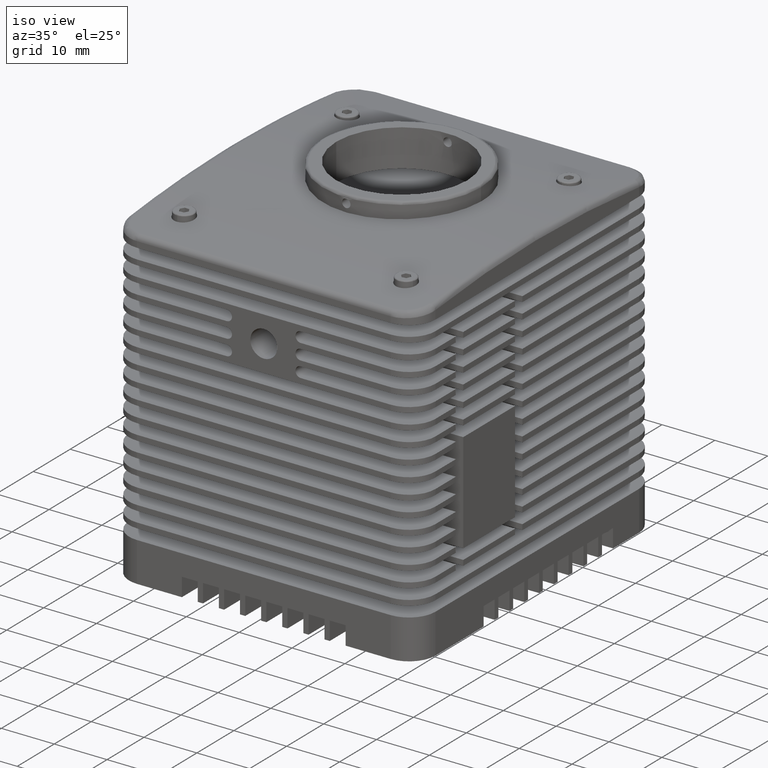
[diagram: clean part render]
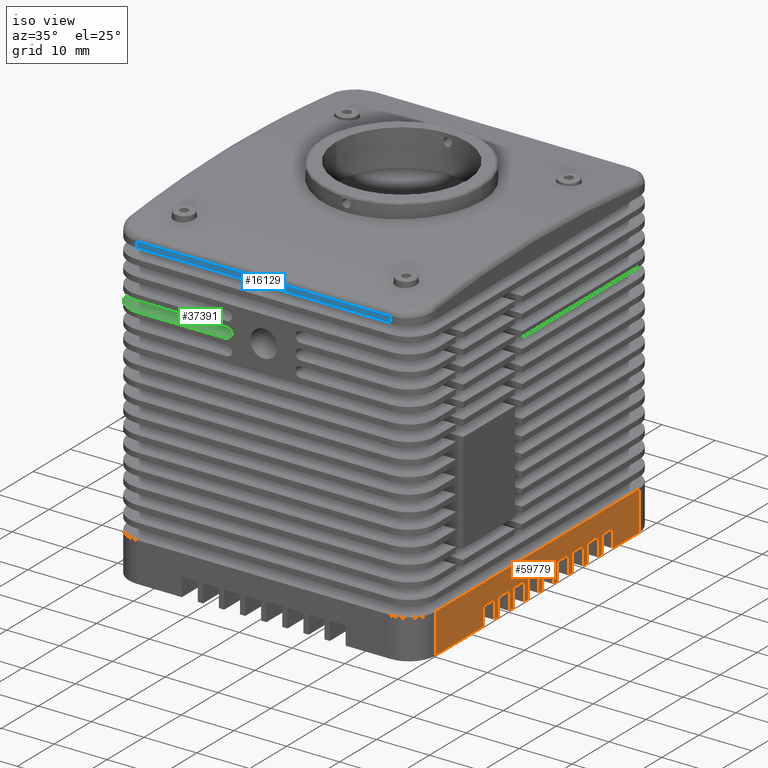
[diagram: same view with three faces highlighted in distinct colors, each labeled with its STEP entity id]
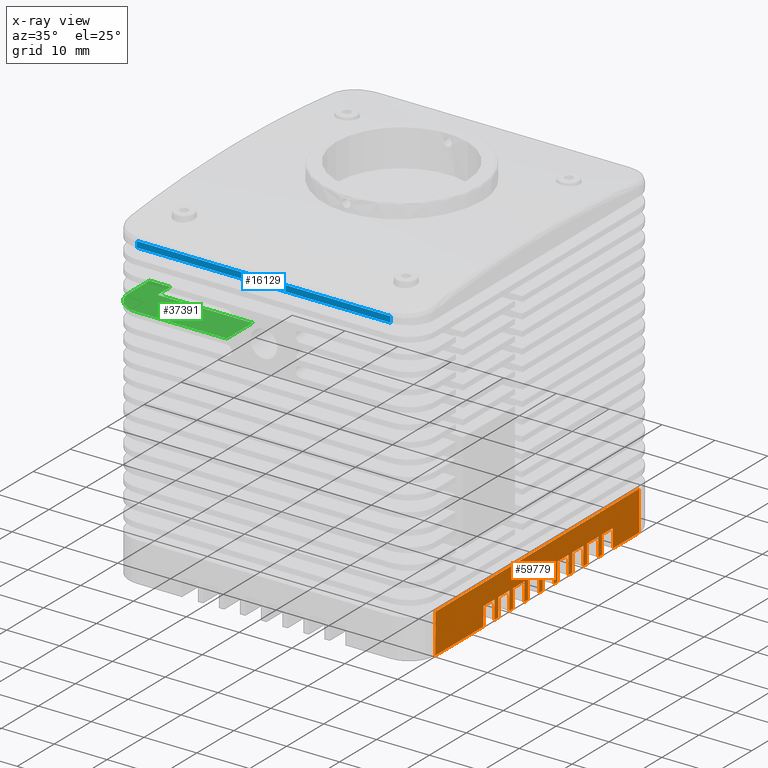
[diagram: x-ray of the same camera — body ghosted, the three highlighted faces saturated]
A machine part, iso view with three faces highlighted in distinct colors.
The next image is the same camera in x-ray (body ghosted, the three faces saturated) — at least one of them is partly hidden behind the body in this view.
Their STEP definitions:

[orange] entity #59779 — the highlighted planar face has unit normal (-1, 0, 0).
#437 = ORIENTED_EDGE ( 'NONE', *, *, #46836, .F. ) ;
#690 = CARTESIAN_POINT ( 'NONE',  ( 21.88553785810800179, -5.753420639430999906, -43.00000000000000000 ) ) ;
#883 = DIRECTION ( 'NONE',  ( 0.000000000000000000, 0.000000000000000000, -1.000000000000000000 ) ) ;
#897 = DIRECTION ( 'NONE',  ( 0.000000000000000000, 0.000000000000000000, -1.000000000000000000 ) ) ;
#1279 = CARTESIAN_POINT ( 'NONE',  ( 21.88553785810800179, -26.75342063943100257, -39.50000000000000000 ) ) ;
#1423 = DIRECTION ( 'NONE',  ( 0.000000000000000000, -1.000000000000000000, 0.000000000000000000 ) ) ;
#1661 = VECTOR ( 'NONE', #31210, 1000.000000000000000 ) ;
#1736 = CARTESIAN_POINT ( 'NONE',  ( 21.88553785810800179, 17.24657936056900098, -47.00000000000000000 ) ) ;
#1775 = VERTEX_POINT ( 'NONE', #68297 ) ;
#1980 = VECTOR ( 'NONE', #32280, 1000.000000000000000 ) ;
#2534 = VECTOR ( 'NONE', #17840, 1000.000000000000000 ) ;
#2590 = LINE ( 'NONE', #57024, #26695 ) ;
#2767 = DIRECTION ( 'NONE',  ( 0.000000000000000000, 0.000000000000000000, 1.000000000000000000 ) ) ;
#3181 = EDGE_CURVE ( 'NONE', #24856, #41676, #51237, .T. ) ;
#3478 = DIRECTION ( 'NONE',  ( 0.000000000000000000, 0.000000000000000000, 1.000000000000000000 ) ) ;
#3669 = ORIENTED_EDGE ( 'NONE', *, *, #60145, .F. ) ;
#4299 = LINE ( 'NONE', #48378, #61005 ) ;
#4553 = CARTESIAN_POINT ( 'NONE',  ( 21.88553785810800179, -1.753420639430999906, -43.50000000000000711 ) ) ;
#4791 = VERTEX_POINT ( 'NONE', #7681 ) ;
#5295 = VERTEX_POINT ( 'NONE', #20689 ) ;
#5506 = DIRECTION ( 'NONE',  ( 0.000000000000000000, 0.000000000000000000, -1.000000000000000000 ) ) ;
#5746 = CARTESIAN_POINT ( 'NONE',  ( 21.88553785810800179, -26.75342063943100257, -47.00000000000000000 ) ) ;
#6219 = VECTOR ( 'NONE', #1423, 1000.000000000000000 ) ;
#6402 = CARTESIAN_POINT ( 'NONE',  ( 21.88553785810800179, -26.75342063943100257, -47.00000000000000000 ) ) ;
#6630 = VECTOR ( 'NONE', #5506, 1000.000000000000000 ) ;
#6869 = EDGE_CURVE ( 'NONE', #15962, #49635, #65300, .T. ) ;
#7174 = VERTEX_POINT ( 'NONE', #76350 ) ;
#7239 = VERTEX_POINT ( 'NONE', #46947 ) ;
#7295 = VECTOR ( 'NONE', #30656, 1000.000000000000000 ) ;
#7349 = VECTOR ( 'NONE', #71315, 1000.000000000000000 ) ;
#7575 = CARTESIAN_POINT ( 'NONE',  ( 21.88553785810800179, 13.24657936056900098, -43.50000000000000711 ) ) ;
#7681 = CARTESIAN_POINT ( 'NONE',  ( 21.88553785810800179, 2.246579360569000094, -43.50000000000000711 ) ) ;
#7945 = EDGE_CURVE ( 'NONE', #4791, #7174, #35744, .T. ) ;
#8282 = EDGE_CURVE ( 'NONE', #21447, #78427, #33296, .T. ) ;
#8294 = LINE ( 'NONE', #32522, #78187 ) ;
#8382 = VECTOR ( 'NONE', #49269, 1000.000000000000000 ) ;
#8558 = VERTEX_POINT ( 'NONE', #16082 ) ;
#9109 = LINE ( 'NONE', #58344, #67192 ) ;
#9394 = LINE ( 'NONE', #52299, #51076 ) ;
#9446 = CARTESIAN_POINT ( 'NONE',  ( 21.88553785810800179, 5.246579360568999206, -43.00000000000000000 ) ) ;
#9493 = CARTESIAN_POINT ( 'NONE',  ( 21.88553785810800179, -5.753420639430999906, -47.00000000000000000 ) ) ;
#10277 = CARTESIAN_POINT ( 'NONE',  ( 21.88553785810800179, 28.24657936056899743, -43.50000000000000711 ) ) ;
#10523 = EDGE_CURVE ( 'NONE', #61465, #76767, #53742, .T. ) ;
#10572 = CARTESIAN_POINT ( 'NONE',  ( 21.88553785810800179, 5.246579360568999206, -47.00000000000000000 ) ) ;
#10605 = VERTEX_POINT ( 'NONE', #32249 ) ;
#10745 = CARTESIAN_POINT ( 'NONE',  ( 21.88553785810800179, -26.75342063943100257, -47.00000000000000000 ) ) ;
#10799 = ORIENTED_EDGE ( 'NONE', *, *, #77660, .F. ) ;
#10893 = CARTESIAN_POINT ( 'NONE',  ( 21.88553785810800179, 28.24657936056899743, -43.50000000000000711 ) ) ;
#11238 = CARTESIAN_POINT ( 'NONE',  ( 21.88553785810800179, 28.24657936056899743, -43.00000000000000000 ) ) ;
#11311 = VERTEX_POINT ( 'NONE', #67524 ) ;
#11505 = EDGE_CURVE ( 'NONE', #5295, #44990, #61057, .T. ) ;
#11575 = ORIENTED_EDGE ( 'NONE', *, *, #50181, .F. ) ;
#11991 = CARTESIAN_POINT ( 'NONE',  ( 21.88553785810800179, 13.24657936056900098, -43.00000000000000000 ) ) ;
#12656 = EDGE_CURVE ( 'NONE', #64875, #24594, #51057, .T. ) ;
#12845 = VERTEX_POINT ( 'NONE', #77625 ) ;
#13101 = LINE ( 'NONE', #18671, #58224 ) ;
#13429 = CARTESIAN_POINT ( 'NONE',  ( 21.88553785810800179, 21.24657936056900098, -47.00000000000000000 ) ) ;
#13846 = AXIS2_PLACEMENT_3D ( 'NONE', #11238, #40249, #16794 ) ;
#14089 = LINE ( 'NONE', #50242, #76410 ) ;
#14810 = LINE ( 'NONE', #58492, #25197 ) ;
#14993 = LINE ( 'NONE', #38456, #31751 ) ;
#15099 = EDGE_CURVE ( 'NONE', #11311, #15962, #2590, .T. ) ;
#15815 = VECTOR ( 'NONE', #48434, 1000.000000000000000 ) ;
#15962 = VERTEX_POINT ( 'NONE', #39244 ) ;
#15990 = CARTESIAN_POINT ( 'NONE',  ( 21.88553785810800179, 10.24657936056900098, -43.50000000000000711 ) ) ;
#16082 = CARTESIAN_POINT ( 'NONE',  ( 21.88553785810800179, -9.753420639431000794, -43.50000000000000711 ) ) ;
#16212 = EDGE_CURVE ( 'NONE', #10605, #72143, #55090, .T. ) ;
#16634 = DIRECTION ( 'NONE',  ( 0.000000000000000000, -1.000000000000000000, 0.000000000000000000 ) ) ;
#16794 = DIRECTION ( 'NONE',  ( 0.000000000000000000, 1.000000000000000000, 0.000000000000000000 ) ) ;
#17449 = LINE ( 'NONE', #54816, #43352 ) ;
#17840 = DIRECTION ( 'NONE',  ( 0.000000000000000000, 0.000000000000000000, -1.000000000000000000 ) ) ;
#18188 = CARTESIAN_POINT ( 'NONE',  ( 21.88553785810800179, 28.24657936056899743, -47.00000000000000000 ) ) ;
#18214 = CARTESIAN_POINT ( 'NONE',  ( 21.88553785810800179, 28.24657936056899743, -43.50000000000000711 ) ) ;
#18227 = EDGE_CURVE ( 'NONE', #28710, #70486, #17449, .T. ) ;
#18386 = CARTESIAN_POINT ( 'NONE',  ( 21.88553785810800179, -9.753420639431000794, -43.00000000000000000 ) ) ;
#18411 = CARTESIAN_POINT ( 'NONE',  ( 21.88553785810800179, 13.24657936056900098, -47.00000000000000000 ) ) ;
#18671 = CARTESIAN_POINT ( 'NONE',  ( 21.88553785810800179, -26.75342063943100257, -47.00000000000000000 ) ) ;
#18739 = ORIENTED_EDGE ( 'NONE', *, *, #31184, .F. ) ;
#18955 = DIRECTION ( 'NONE',  ( 0.000000000000000000, 0.000000000000000000, -1.000000000000000000 ) ) ;
#19503 = CARTESIAN_POINT ( 'NONE',  ( 21.88553785810800179, 14.24657936056900098, -47.00000000000000000 ) ) ;
#19532 = VECTOR ( 'NONE', #58425, 1000.000000000000000 ) ;
#19857 = LINE ( 'NONE', #61967, #8382 ) ;
#19861 = LINE ( 'NONE', #20265, #50976 ) ;
#19950 = CARTESIAN_POINT ( 'NONE',  ( 21.88553785810800179, -13.75342063943100079, -43.00000000000000000 ) ) ;
#20055 = LINE ( 'NONE', #44286, #1661 ) ;
#20077 = ORIENTED_EDGE ( 'NONE', *, *, #6869, .F. ) ;
#20265 = CARTESIAN_POINT ( 'NONE',  ( 21.88553785810800179, -26.75342063943100257, -47.00000000000000000 ) ) ;
#20689 = CARTESIAN_POINT ( 'NONE',  ( 21.88553785810800179, -5.753420639430999906, -43.50000000000000711 ) ) ;
#20701 = DIRECTION ( 'NONE',  ( 0.000000000000000000, -1.000000000000000000, 0.000000000000000000 ) ) ;
#20946 = VERTEX_POINT ( 'NONE', #54483 ) ;
#21430 = CARTESIAN_POINT ( 'NONE',  ( 21.88553785810800179, 6.246579360568999206, -47.00000000000000000 ) ) ;
#21447 = VERTEX_POINT ( 'NONE', #10572 ) ;
#21983 = EDGE_CURVE ( 'NONE', #49635, #63271, #63324, .T. ) ;
#22295 = VECTOR ( 'NONE', #23541, 1000.000000000000000 ) ;
#22301 = EDGE_CURVE ( 'NONE', #72146, #12845, #25126, .T. ) ;
#22574 = DIRECTION ( 'NONE',  ( 0.000000000000000000, 0.000000000000000000, 1.000000000000000000 ) ) ;
#22590 = LINE ( 'NONE', #78191, #6630 ) ;
#22863 = EDGE_CURVE ( 'NONE', #12845, #61465, #19857, .T. ) ;
#23175 = EDGE_CURVE ( 'NONE', #38307, #8558, #30927, .T. ) ;
#23363 = DIRECTION ( 'NONE',  ( 0.000000000000000000, -1.000000000000000000, 0.000000000000000000 ) ) ;
#23454 = CARTESIAN_POINT ( 'NONE',  ( 21.88553785810800179, -10.75342063943099902, -47.00000000000000000 ) ) ;
#23541 = DIRECTION ( 'NONE',  ( 0.000000000000000000, 0.000000000000000000, 1.000000000000000000 ) ) ;
#23799 = CARTESIAN_POINT ( 'NONE',  ( 21.88553785810800179, 18.24657936056900098, -43.00000000000000000 ) ) ;
#24228 = ORIENTED_EDGE ( 'NONE', *, *, #36416, .F. ) ;
#24276 = VERTEX_POINT ( 'NONE', #21430 ) ;
#24594 = VERTEX_POINT ( 'NONE', #13429 ) ;
#24686 = DIRECTION ( 'NONE',  ( 0.000000000000000000, 0.000000000000000000, 1.000000000000000000 ) ) ;
#24856 = VERTEX_POINT ( 'NONE', #40009 ) ;
#25014 = DIRECTION ( 'NONE',  ( 0.000000000000000000, -1.000000000000000000, 0.000000000000000000 ) ) ;
#25126 = LINE ( 'NONE', #19950, #1980 ) ;
#25197 = VECTOR ( 'NONE', #63267, 1000.000000000000000 ) ;
#26637 = VECTOR ( 'NONE', #50785, 1000.000000000000000 ) ;
#26695 = VECTOR ( 'NONE', #26838, 1000.000000000000000 ) ;
#26838 = DIRECTION ( 'NONE',  ( 0.000000000000000000, 0.000000000000000000, 1.000000000000000000 ) ) ;
#27070 = ORIENTED_EDGE ( 'NONE', *, *, #12656, .F. ) ;
#27577 = CARTESIAN_POINT ( 'NONE',  ( 21.88553785810800179, -1.753420639430999906, -43.00000000000000000 ) ) ;
#28445 = EDGE_CURVE ( 'NONE', #73574, #72146, #14810, .T. ) ;
#28710 = VERTEX_POINT ( 'NONE', #42958 ) ;
#28971 = VERTEX_POINT ( 'NONE', #63561 ) ;
#29217 = ORIENTED_EDGE ( 'NONE', *, *, #54941, .F. ) ;
#29469 = EDGE_CURVE ( 'NONE', #30340, #64875, #32506, .T. ) ;
#29752 = ORIENTED_EDGE ( 'NONE', *, *, #77584, .F. ) ;
#29996 = DIRECTION ( 'NONE',  ( 0.000000000000000000, -1.000000000000000000, 0.000000000000000000 ) ) ;
#30340 = VERTEX_POINT ( 'NONE', #46811 ) ;
#30512 = CARTESIAN_POINT ( 'NONE',  ( 21.88553785810800179, 10.24657936056900098, -47.00000000000000000 ) ) ;
#30656 = DIRECTION ( 'NONE',  ( 0.000000000000000000, -1.000000000000000000, 0.000000000000000000 ) ) ;
#30831 = CARTESIAN_POINT ( 'NONE',  ( 21.88553785810800179, -2.753420639430999906, -43.50000000000000711 ) ) ;
#30927 = LINE ( 'NONE', #18214, #46410 ) ;
#30963 = ORIENTED_EDGE ( 'NONE', *, *, #43673, .F. ) ;
#30994 = VECTOR ( 'NONE', #75626, 1000.000000000000000 ) ;
#31184 = EDGE_CURVE ( 'NONE', #78427, #4791, #20055, .T. ) ;
#31210 = DIRECTION ( 'NONE',  ( 0.000000000000000000, -1.000000000000000000, 0.000000000000000000 ) ) ;
#31539 = ORIENTED_EDGE ( 'NONE', *, *, #31969, .F. ) ;
#31751 = VECTOR ( 'NONE', #56727, 1000.000000000000000 ) ;
#31820 = VERTEX_POINT ( 'NONE', #18411 ) ;
#31969 = EDGE_CURVE ( 'NONE', #37552, #64280, #46826, .T. ) ;
#32249 = CARTESIAN_POINT ( 'NONE',  ( 21.88553785810800179, 21.24657936056900098, -43.50000000000000711 ) ) ;
#32280 = DIRECTION ( 'NONE',  ( 0.000000000000000000, 0.000000000000000000, -1.000000000000000000 ) ) ;
#32506 = LINE ( 'NONE', #56735, #26637 ) ;
#32522 = CARTESIAN_POINT ( 'NONE',  ( 21.88553785810800179, 28.24657936056899743, -43.50000000000000711 ) ) ;
#33296 = LINE ( 'NONE', #9446, #41188 ) ;
#33350 = CARTESIAN_POINT ( 'NONE',  ( 21.88553785810800179, -2.753420639430999906, -43.00000000000000000 ) ) ;
#33629 = DIRECTION ( 'NONE',  ( 0.000000000000000000, 0.000000000000000000, 1.000000000000000000 ) ) ;
#33924 = VERTEX_POINT ( 'NONE', #53075 ) ;
#34459 = VECTOR ( 'NONE', #897, 1000.000000000000000 ) ;
#34579 = LINE ( 'NONE', #10745, #19532 ) ;
#35115 = DIRECTION ( 'NONE',  ( 0.000000000000000000, -1.000000000000000000, 0.000000000000000000 ) ) ;
#35744 = LINE ( 'NONE', #41699, #15815 ) ;
#35778 = CARTESIAN_POINT ( 'NONE',  ( 21.88553785810800179, -6.753420639430999906, -43.50000000000000711 ) ) ;
#35863 = LINE ( 'NONE', #72774, #41035 ) ;
#36368 = VERTEX_POINT ( 'NONE', #7575 ) ;
#36371 = VECTOR ( 'NONE', #18955, 1000.000000000000000 ) ;
#36416 = EDGE_CURVE ( 'NONE', #28971, #43117, #42945, .T. ) ;
#37034 = CARTESIAN_POINT ( 'NONE',  ( 21.88553785810800179, -13.75342063943100079, -43.50000000000000711 ) ) ;
#37552 = VERTEX_POINT ( 'NONE', #30512 ) ;
#38042 = VECTOR ( 'NONE', #66690, 1000.000000000000000 ) ;
#38092 = ORIENTED_EDGE ( 'NONE', *, *, #69456, .F. ) ;
#38307 = VERTEX_POINT ( 'NONE', #35778 ) ;
#38456 = CARTESIAN_POINT ( 'NONE',  ( 21.88553785810800179, 21.24657936056900098, -43.00000000000000000 ) ) ;
#38537 = EDGE_CURVE ( 'NONE', #58434, #31820, #13101, .T. ) ;
#38659 = ORIENTED_EDGE ( 'NONE', *, *, #29469, .F. ) ;
#38781 = VECTOR ( 'NONE', #24686, 1000.000000000000000 ) ;
#39244 = CARTESIAN_POINT ( 'NONE',  ( 21.88553785810800179, 1.246579360569011197, -43.50000000000000711 ) ) ;
#39376 = EDGE_CURVE ( 'NONE', #63271, #24856, #59404, .T. ) ;
#40009 = CARTESIAN_POINT ( 'NONE',  ( 21.88553785810800179, -2.753420639430999906, -47.00000000000000000 ) ) ;
#40189 = LINE ( 'NONE', #64798, #52269 ) ;
#40191 = ORIENTED_EDGE ( 'NONE', *, *, #51294, .F. ) ;
#40249 = DIRECTION ( 'NONE',  ( -1.000000000000000000, 0.000000000000000000, 0.000000000000000000 ) ) ;
#40440 = ORIENTED_EDGE ( 'NONE', *, *, #11505, .F. ) ;
#40469 = LINE ( 'NONE', #10277, #77668 ) ;
#41035 = VECTOR ( 'NONE', #883, 1000.000000000000000 ) ;
#41188 = VECTOR ( 'NONE', #3478, 1000.000000000000000 ) ;
#41433 = PLANE ( 'NONE',  #13846 ) ;
#41676 = VERTEX_POINT ( 'NONE', #30831 ) ;
#41699 = CARTESIAN_POINT ( 'NONE',  ( 21.88553785810800179, 2.246579360569000094, -43.00000000000000000 ) ) ;
#41747 = ORIENTED_EDGE ( 'NONE', *, *, #22301, .F. ) ;
#42330 = ORIENTED_EDGE ( 'NONE', *, *, #70940, .F. ) ;
#42651 = EDGE_LOOP ( 'NONE', ( #3669, #58774, #69354, #41747, #68974, #437, #24228, #40191, #43206, #65184, #64838, #40440, #53564, #44240, #59831, #59015, #20077, #61660, #11575, #65839, #18739, #48709, #70023, #30963, #42330, #59870, #31539, #66364, #44685, #38092, #57408, #62694, #29217, #10799, #52701, #29752, #62477, #56435, #27070, #38659 ) ) ;
#42945 = LINE ( 'NONE', #6402, #7295 ) ;
#42958 = CARTESIAN_POINT ( 'NONE',  ( 21.88553785810800179, 18.24657936056900098, -47.00000000000000000 ) ) ;
#43117 = VERTEX_POINT ( 'NONE', #23454 ) ;
#43206 = ORIENTED_EDGE ( 'NONE', *, *, #23175, .F. ) ;
#43352 = VECTOR ( 'NONE', #60362, 1000.000000000000000 ) ;
#43395 = LINE ( 'NONE', #18386, #34459 ) ;
#43643 = VECTOR ( 'NONE', #20701, 1000.000000000000000 ) ;
#43673 = EDGE_CURVE ( 'NONE', #49636, #24276, #4299, .T. ) ;
#44240 = ORIENTED_EDGE ( 'NONE', *, *, #3181, .F. ) ;
#44286 = CARTESIAN_POINT ( 'NONE',  ( 21.88553785810800179, 28.24657936056899743, -43.50000000000000711 ) ) ;
#44685 = ORIENTED_EDGE ( 'NONE', *, *, #52768, .F. ) ;
#44990 = VERTEX_POINT ( 'NONE', #9493 ) ;
#46410 = VECTOR ( 'NONE', #62261, 1000.000000000000000 ) ;
#46811 = CARTESIAN_POINT ( 'NONE',  ( 21.88553785810800179, 28.24657936056899743, -39.50000000000000000 ) ) ;
#46826 = LINE ( 'NONE', #69872, #51170 ) ;
#46836 = EDGE_CURVE ( 'NONE', #43117, #73574, #40189, .T. ) ;
#46947 = CARTESIAN_POINT ( 'NONE',  ( 21.88553785810800179, 17.24657936056900098, -43.50000000000000711 ) ) ;
#46984 = FACE_OUTER_BOUND ( 'NONE', #42651, .T. ) ;
#47074 = EDGE_CURVE ( 'NONE', #24276, #21447, #19861, .T. ) ;
#47462 = EDGE_CURVE ( 'NONE', #54430, #37552, #22590, .T. ) ;
#47796 = VECTOR ( 'NONE', #35115, 1000.000000000000000 ) ;
#48298 = VECTOR ( 'NONE', #56248, 1000.000000000000000 ) ;
#48378 = CARTESIAN_POINT ( 'NONE',  ( 21.88553785810800179, 6.246579360568999206, -43.00000000000000000 ) ) ;
#48434 = DIRECTION ( 'NONE',  ( 0.000000000000000000, 0.000000000000000000, -1.000000000000000000 ) ) ;
#48709 = ORIENTED_EDGE ( 'NONE', *, *, #8282, .F. ) ;
#49269 = DIRECTION ( 'NONE',  ( 0.000000000000000000, -1.000000000000000000, 0.000000000000000000 ) ) ;
#49635 = VERTEX_POINT ( 'NONE', #4553 ) ;
#49636 = VERTEX_POINT ( 'NONE', #66114 ) ;
#49801 = EDGE_CURVE ( 'NONE', #33924, #58434, #35863, .T. ) ;
#50181 = EDGE_CURVE ( 'NONE', #7174, #11311, #34579, .T. ) ;
#50242 = CARTESIAN_POINT ( 'NONE',  ( 21.88553785810800179, 28.24657936056899743, -43.50000000000000711 ) ) ;
#50785 = DIRECTION ( 'NONE',  ( 0.000000000000000000, 0.000000000000000000, -1.000000000000000000 ) ) ;
#50910 = LINE ( 'NONE', #75130, #43643 ) ;
#50976 = VECTOR ( 'NONE', #74672, 1000.000000000000000 ) ;
#51057 = LINE ( 'NONE', #75269, #6219 ) ;
#51076 = VECTOR ( 'NONE', #33629, 1000.000000000000000 ) ;
#51170 = VECTOR ( 'NONE', #16634, 1000.000000000000000 ) ;
#51237 = LINE ( 'NONE', #33350, #56128 ) ;
#51294 = EDGE_CURVE ( 'NONE', #8558, #28971, #43395, .T. ) ;
#52025 = EDGE_CURVE ( 'NONE', #41676, #5295, #40469, .T. ) ;
#52269 = VECTOR ( 'NONE', #64403, 1000.000000000000000 ) ;
#52299 = CARTESIAN_POINT ( 'NONE',  ( 21.88553785810800179, -6.753420639430999906, -43.00000000000000000 ) ) ;
#52454 = EDGE_CURVE ( 'NONE', #20946, #38307, #9394, .T. ) ;
#52701 = ORIENTED_EDGE ( 'NONE', *, *, #18227, .F. ) ;
#52768 = EDGE_CURVE ( 'NONE', #36368, #54430, #14089, .T. ) ;
#53018 = CARTESIAN_POINT ( 'NONE',  ( 21.88553785810800179, 5.246579360568999206, -43.50000000000000711 ) ) ;
#53075 = CARTESIAN_POINT ( 'NONE',  ( 21.88553785810800179, 14.24657936056900098, -43.50000000000000711 ) ) ;
#53564 = ORIENTED_EDGE ( 'NONE', *, *, #52025, .F. ) ;
#53742 = LINE ( 'NONE', #77947, #22295 ) ;
#54430 = VERTEX_POINT ( 'NONE', #15990 ) ;
#54483 = CARTESIAN_POINT ( 'NONE',  ( 21.88553785810800179, -6.753420639430999906, -47.00000000000000000 ) ) ;
#54739 = CARTESIAN_POINT ( 'NONE',  ( 21.88553785810800179, -1.753420639430999906, -47.00000000000000000 ) ) ;
#54798 = LINE ( 'NONE', #55180, #38042 ) ;
#54816 = CARTESIAN_POINT ( 'NONE',  ( 21.88553785810800179, -26.75342063943100257, -47.00000000000000000 ) ) ;
#54941 = EDGE_CURVE ( 'NONE', #7239, #33924, #50910, .T. ) ;
#55090 = LINE ( 'NONE', #73719, #48298 ) ;
#55180 = CARTESIAN_POINT ( 'NONE',  ( 21.88553785810800179, 17.24657936056900098, -43.00000000000000000 ) ) ;
#56128 = VECTOR ( 'NONE', #2767, 1000.000000000000000 ) ;
#56248 = DIRECTION ( 'NONE',  ( 0.000000000000000000, -1.000000000000000000, 0.000000000000000000 ) ) ;
#56435 = ORIENTED_EDGE ( 'NONE', *, *, #77803, .F. ) ;
#56727 = DIRECTION ( 'NONE',  ( 0.000000000000000000, 0.000000000000000000, 1.000000000000000000 ) ) ;
#56735 = CARTESIAN_POINT ( 'NONE',  ( 21.88553785810800179, 28.24657936056899743, -43.00000000000000000 ) ) ;
#56752 = DIRECTION ( 'NONE',  ( 0.000000000000000000, -1.000000000000000000, 0.000000000000000000 ) ) ;
#57024 = CARTESIAN_POINT ( 'NONE',  ( 21.88553785810800179, 1.246579360569011197, -43.00000000000000000 ) ) ;
#57262 = DIRECTION ( 'NONE',  ( 0.000000000000000000, 1.000000000000000000, 0.000000000000000000 ) ) ;
#57408 = ORIENTED_EDGE ( 'NONE', *, *, #38537, .F. ) ;
#58224 = VECTOR ( 'NONE', #25014, 1000.000000000000000 ) ;
#58344 = CARTESIAN_POINT ( 'NONE',  ( 21.88553785810800179, 9.246579360569000983, -43.00000000000000000 ) ) ;
#58425 = DIRECTION ( 'NONE',  ( 0.000000000000000000, -1.000000000000000000, 0.000000000000000000 ) ) ;
#58434 = VERTEX_POINT ( 'NONE', #19503 ) ;
#58492 = CARTESIAN_POINT ( 'NONE',  ( 21.88553785810800179, 28.24657936056899743, -43.50000000000000711 ) ) ;
#58763 = LINE ( 'NONE', #23799, #2534 ) ;
#58774 = ORIENTED_EDGE ( 'NONE', *, *, #10523, .F. ) ;
#59015 = ORIENTED_EDGE ( 'NONE', *, *, #21983, .F. ) ;
#59029 = CARTESIAN_POINT ( 'NONE',  ( 21.88553785810800179, -26.75342063943100257, -47.00000000000000000 ) ) ;
#59404 = LINE ( 'NONE', #65369, #7349 ) ;
#59779 = ADVANCED_FACE ( 'NONE', ( #46984 ), #41433, .F. ) ;
#59831 = ORIENTED_EDGE ( 'NONE', *, *, #39376, .F. ) ;
#59870 = ORIENTED_EDGE ( 'NONE', *, *, #61043, .F. ) ;
#60145 = EDGE_CURVE ( 'NONE', #76767, #30340, #75519, .T. ) ;
#60159 = LINE ( 'NONE', #5746, #75581 ) ;
#60362 = DIRECTION ( 'NONE',  ( 0.000000000000000000, -1.000000000000000000, 0.000000000000000000 ) ) ;
#60772 = CARTESIAN_POINT ( 'NONE',  ( 21.88553785810800179, 9.246579360569000983, -47.00000000000000000 ) ) ;
#61005 = VECTOR ( 'NONE', #71020, 1000.000000000000000 ) ;
#61043 = EDGE_CURVE ( 'NONE', #64280, #1775, #9109, .T. ) ;
#61057 = LINE ( 'NONE', #690, #36371 ) ;
#61465 = VERTEX_POINT ( 'NONE', #59029 ) ;
#61660 = ORIENTED_EDGE ( 'NONE', *, *, #15099, .F. ) ;
#61967 = CARTESIAN_POINT ( 'NONE',  ( 21.88553785810800179, 28.24657936056899743, -47.00000000000000000 ) ) ;
#62261 = DIRECTION ( 'NONE',  ( 0.000000000000000000, -1.000000000000000000, 0.000000000000000000 ) ) ;
#62477 = ORIENTED_EDGE ( 'NONE', *, *, #16212, .F. ) ;
#62694 = ORIENTED_EDGE ( 'NONE', *, *, #49801, .F. ) ;
#63267 = DIRECTION ( 'NONE',  ( 0.000000000000000000, -1.000000000000000000, 0.000000000000000000 ) ) ;
#63271 = VERTEX_POINT ( 'NONE', #54739 ) ;
#63324 = LINE ( 'NONE', #27577, #30994 ) ;
#63561 = CARTESIAN_POINT ( 'NONE',  ( 21.88553785810800179, -9.753420639431000794, -47.00000000000000000 ) ) ;
#64280 = VERTEX_POINT ( 'NONE', #60772 ) ;
#64403 = DIRECTION ( 'NONE',  ( 0.000000000000000000, 0.000000000000000000, 1.000000000000000000 ) ) ;
#64798 = CARTESIAN_POINT ( 'NONE',  ( 21.88553785810800179, -10.75342063943099902, -43.00000000000000000 ) ) ;
#64838 = ORIENTED_EDGE ( 'NONE', *, *, #70282, .F. ) ;
#64875 = VERTEX_POINT ( 'NONE', #18188 ) ;
#65184 = ORIENTED_EDGE ( 'NONE', *, *, #52454, .F. ) ;
#65300 = LINE ( 'NONE', #10893, #47796 ) ;
#65369 = CARTESIAN_POINT ( 'NONE',  ( 21.88553785810800179, -26.75342063943100257, -47.00000000000000000 ) ) ;
#65839 = ORIENTED_EDGE ( 'NONE', *, *, #7945, .F. ) ;
#66114 = CARTESIAN_POINT ( 'NONE',  ( 21.88553785810800179, 6.246579360568999206, -43.50000000000000711 ) ) ;
#66364 = ORIENTED_EDGE ( 'NONE', *, *, #47462, .F. ) ;
#66690 = DIRECTION ( 'NONE',  ( 0.000000000000000000, 0.000000000000000000, 1.000000000000000000 ) ) ;
#66830 = CARTESIAN_POINT ( 'NONE',  ( 21.88553785810800179, -10.75342063943099902, -43.50000000000000711 ) ) ;
#67192 = VECTOR ( 'NONE', #22574, 1000.000000000000000 ) ;
#67524 = CARTESIAN_POINT ( 'NONE',  ( 21.88553785810800179, 1.246579360569011197, -47.00000000000000000 ) ) ;
#67596 = CARTESIAN_POINT ( 'NONE',  ( 21.88553785810800179, 18.24657936056900098, -43.50000000000000711 ) ) ;
#68297 = CARTESIAN_POINT ( 'NONE',  ( 21.88553785810800179, 9.246579360569000983, -43.50000000000000711 ) ) ;
#68974 = ORIENTED_EDGE ( 'NONE', *, *, #28445, .F. ) ;
#69354 = ORIENTED_EDGE ( 'NONE', *, *, #22863, .F. ) ;
#69456 = EDGE_CURVE ( 'NONE', #31820, #36368, #71955, .T. ) ;
#69872 = CARTESIAN_POINT ( 'NONE',  ( 21.88553785810800179, -26.75342063943100257, -47.00000000000000000 ) ) ;
#70023 = ORIENTED_EDGE ( 'NONE', *, *, #47074, .F. ) ;
#70282 = EDGE_CURVE ( 'NONE', #44990, #20946, #60159, .T. ) ;
#70486 = VERTEX_POINT ( 'NONE', #1736 ) ;
#70869 = VECTOR ( 'NONE', #57262, 1000.000000000000000 ) ;
#70940 = EDGE_CURVE ( 'NONE', #1775, #49636, #8294, .T. ) ;
#70959 = CARTESIAN_POINT ( 'NONE',  ( 21.88553785810800179, -26.75342063943100257, -39.50000000000000000 ) ) ;
#71020 = DIRECTION ( 'NONE',  ( 0.000000000000000000, 0.000000000000000000, -1.000000000000000000 ) ) ;
#71315 = DIRECTION ( 'NONE',  ( 0.000000000000000000, -1.000000000000000000, 0.000000000000000000 ) ) ;
#71955 = LINE ( 'NONE', #11991, #38781 ) ;
#72143 = VERTEX_POINT ( 'NONE', #67596 ) ;
#72146 = VERTEX_POINT ( 'NONE', #37034 ) ;
#72774 = CARTESIAN_POINT ( 'NONE',  ( 21.88553785810800179, 14.24657936056900098, -43.00000000000000000 ) ) ;
#73574 = VERTEX_POINT ( 'NONE', #66830 ) ;
#73719 = CARTESIAN_POINT ( 'NONE',  ( 21.88553785810800179, 28.24657936056899743, -43.50000000000000711 ) ) ;
#74672 = DIRECTION ( 'NONE',  ( 0.000000000000000000, -1.000000000000000000, 0.000000000000000000 ) ) ;
#74856 = DIRECTION ( 'NONE',  ( 0.000000000000000000, -1.000000000000000000, 0.000000000000000000 ) ) ;
#75130 = CARTESIAN_POINT ( 'NONE',  ( 21.88553785810800179, 28.24657936056899743, -43.50000000000000711 ) ) ;
#75269 = CARTESIAN_POINT ( 'NONE',  ( 21.88553785810800179, 28.24657936056899743, -47.00000000000000000 ) ) ;
#75519 = LINE ( 'NONE', #1279, #70869 ) ;
#75581 = VECTOR ( 'NONE', #29996, 1000.000000000000000 ) ;
#75626 = DIRECTION ( 'NONE',  ( 0.000000000000000000, 0.000000000000000000, -1.000000000000000000 ) ) ;
#76350 = CARTESIAN_POINT ( 'NONE',  ( 21.88553785810800179, 2.246579360569000094, -47.00000000000000000 ) ) ;
#76410 = VECTOR ( 'NONE', #74856, 1000.000000000000000 ) ;
#76767 = VERTEX_POINT ( 'NONE', #70959 ) ;
#77584 = EDGE_CURVE ( 'NONE', #72143, #28710, #58763, .T. ) ;
#77625 = CARTESIAN_POINT ( 'NONE',  ( 21.88553785810800179, -13.75342063943100079, -47.00000000000000000 ) ) ;
#77660 = EDGE_CURVE ( 'NONE', #70486, #7239, #54798, .T. ) ;
#77668 = VECTOR ( 'NONE', #23363, 1000.000000000000000 ) ;
#77803 = EDGE_CURVE ( 'NONE', #24594, #10605, #14993, .T. ) ;
#77947 = CARTESIAN_POINT ( 'NONE',  ( 21.88553785810800179, -26.75342063943100257, -43.00000000000000000 ) ) ;
#78187 = VECTOR ( 'NONE', #56752, 1000.000000000000000 ) ;
#78191 = CARTESIAN_POINT ( 'NONE',  ( 21.88553785810800179, 10.24657936056900098, -43.00000000000000000 ) ) ;
#78427 = VERTEX_POINT ( 'NONE', #53018 ) ;

[blue] entity #16129 — the highlighted planar face has unit normal (-0, 1, 0).
#1592 = EDGE_CURVE ( 'NONE', #1768, #42767, #62738, .T. ) ;
#1768 = VERTEX_POINT ( 'NONE', #44078 ) ;
#6505 = ORIENTED_EDGE ( 'NONE', *, *, #44829, .F. ) ;
#6820 = ORIENTED_EDGE ( 'NONE', *, *, #1592, .F. ) ;
#9415 = CARTESIAN_POINT ( 'NONE',  ( 16.88553785810800179, -31.75342063943099902, 10.50000000000000000 ) ) ;
#10765 = LINE ( 'NONE', #29043, #10962 ) ;
#10962 = VECTOR ( 'NONE', #11559, 1000.000000000000000 ) ;
#11209 = EDGE_CURVE ( 'NONE', #42767, #60927, #10765, .T. ) ;
#11559 = DIRECTION ( 'NONE',  ( -1.000000000000000000, 0.000000000000000000, 0.000000000000000000 ) ) ;
#12866 = VECTOR ( 'NONE', #62745, 1000.000000000000000 ) ;
#13895 = LINE ( 'NONE', #38125, #34507 ) ;
#14878 = CARTESIAN_POINT ( 'NONE',  ( -31.11446214189200177, -31.75342063943099902, 11.62273918990805122 ) ) ;
#16129 = ADVANCED_FACE ( 'NONE', ( #30486 ), #72174, .F. ) ;
#17756 = CARTESIAN_POINT ( 'NONE',  ( -36.11446214189199821, -31.75342063943099902, 12.50000000000000000 ) ) ;
#19048 = EDGE_LOOP ( 'NONE', ( #6505, #66558, #69068, #6820 ) ) ;
#26512 = VERTEX_POINT ( 'NONE', #14878 ) ;
#29043 = CARTESIAN_POINT ( 'NONE',  ( -36.11446214189199821, -31.75342063943099902, 10.50000000000000000 ) ) ;
#30486 = FACE_OUTER_BOUND ( 'NONE', #19048, .T. ) ;
#31013 = LINE ( 'NONE', #32565, #12866 ) ;
#32556 = DIRECTION ( 'NONE',  ( 0.000000000000000000, 0.000000000000000000, 1.000000000000000000 ) ) ;
#32565 = CARTESIAN_POINT ( 'NONE',  ( -101.1501430122208944, -31.75342063943099902, 11.62273918990804766 ) ) ;
#34507 = VECTOR ( 'NONE', #32556, 1000.000000000000000 ) ;
#38125 = CARTESIAN_POINT ( 'NONE',  ( -31.11446214189200177, -31.75342063943099902, 12.50000000000000000 ) ) ;
#38904 = CARTESIAN_POINT ( 'NONE',  ( 16.88553785810800179, -31.75342063943099902, 12.50000000000000000 ) ) ;
#42000 = DIRECTION ( 'NONE',  ( -0.000000000000000000, 1.000000000000000000, 0.000000000000000000 ) ) ;
#42767 = VERTEX_POINT ( 'NONE', #9415 ) ;
#44078 = CARTESIAN_POINT ( 'NONE',  ( 16.88553785810800179, -31.75342063943099902, 11.62273918990804766 ) ) ;
#44829 = EDGE_CURVE ( 'NONE', #26512, #1768, #31013, .T. ) ;
#44848 = DIRECTION ( 'NONE',  ( 0.000000000000000000, 0.000000000000000000, -1.000000000000000000 ) ) ;
#51932 = EDGE_CURVE ( 'NONE', #60927, #26512, #13895, .T. ) ;
#56402 = CARTESIAN_POINT ( 'NONE',  ( -31.11446214189200177, -31.75342063943099902, 10.50000000000000000 ) ) ;
#60256 = DIRECTION ( 'NONE',  ( 1.000000000000000000, 0.000000000000000000, 0.000000000000000000 ) ) ;
#60927 = VERTEX_POINT ( 'NONE', #56402 ) ;
#62738 = LINE ( 'NONE', #38904, #67480 ) ;
#62745 = DIRECTION ( 'NONE',  ( 1.000000000000000000, 1.601283208593974774E-16, 0.000000000000000000 ) ) ;
#66558 = ORIENTED_EDGE ( 'NONE', *, *, #51932, .F. ) ;
#67480 = VECTOR ( 'NONE', #44848, 1000.000000000000000 ) ;
#69068 = ORIENTED_EDGE ( 'NONE', *, *, #11209, .F. ) ;
#69881 = AXIS2_PLACEMENT_3D ( 'NONE', #17756, #42000, #60256 ) ;
#72174 = PLANE ( 'NONE',  #69881 ) ;

[green] entity #37391 — the highlighted planar face has unit normal (0, 0, -1).
#264 = LINE ( 'NONE', #54699, #71940 ) ;
#2212 = ORIENTED_EDGE ( 'NONE', *, *, #32846, .F. ) ;
#2478 = CARTESIAN_POINT ( 'NONE',  ( -31.11446214189200177, -26.75342063943100257, -0.4999999999999987232 ) ) ;
#3105 = CARTESIAN_POINT ( 'NONE',  ( -31.11446214189200177, -31.75342063943099902, -0.4999999999999987232 ) ) ;
#3782 = CARTESIAN_POINT ( 'NONE',  ( -36.11446214189199821, -24.75342063943099902, -0.4999999999999987232 ) ) ;
#6612 = DIRECTION ( 'NONE',  ( 1.000000000000000000, 0.000000000000000000, 0.000000000000000000 ) ) ;
#7658 = DIRECTION ( 'NONE',  ( 0.000000000000000000, 0.000000000000000000, -1.000000000000000000 ) ) ;
#9268 = CARTESIAN_POINT ( 'NONE',  ( -14.11446214189199999, 42.01363709704830285, -0.4999999999999987232 ) ) ;
#11036 = FACE_OUTER_BOUND ( 'NONE', #39831, .T. ) ;
#12418 = LINE ( 'NONE', #73564, #23370 ) ;
#12463 = CARTESIAN_POINT ( 'NONE',  ( -14.11446214189199999, -24.75342063943099902, -0.4999999999999987232 ) ) ;
#13585 = ORIENTED_EDGE ( 'NONE', *, *, #71821, .F. ) ;
#14822 = EDGE_CURVE ( 'NONE', #68890, #60840, #49877, .T. ) ;
#15701 = DIRECTION ( 'NONE',  ( -1.000000000000000000, 0.000000000000000000, 0.000000000000000000 ) ) ;
#16595 = PLANE ( 'NONE',  #41679 ) ;
#17485 = ORIENTED_EDGE ( 'NONE', *, *, #32114, .F. ) ;
#23370 = VECTOR ( 'NONE', #60086, 1000.000000000000000 ) ;
#24743 = ORIENTED_EDGE ( 'NONE', *, *, #25118, .F. ) ;
#25118 = EDGE_CURVE ( 'NONE', #56398, #63070, #264, .T. ) ;
#28137 = CARTESIAN_POINT ( 'NONE',  ( -36.11446214189199821, 42.01363709704830285, -0.4999999999999987232 ) ) ;
#32114 = EDGE_CURVE ( 'NONE', #72332, #68890, #78591, .T. ) ;
#32498 = VECTOR ( 'NONE', #15701, 1000.000000000000000 ) ;
#32846 = EDGE_CURVE ( 'NONE', #60840, #51938, #12418, .T. ) ;
#33498 = DIRECTION ( 'NONE',  ( 0.000000000000000000, -1.000000000000000000, 0.000000000000000000 ) ) ;
#35059 = LINE ( 'NONE', #9268, #58004 ) ;
#37391 = ADVANCED_FACE ( 'NONE', ( #11036 ), #16595, .F. ) ;
#38269 = CIRCLE ( 'NONE', #76294, 4.999999999999997335 ) ;
#38550 = ORIENTED_EDGE ( 'NONE', *, *, #46714, .F. ) ;
#39831 = EDGE_LOOP ( 'NONE', ( #13585, #56511, #2212, #64241, #17485, #38550, #24743 ) ) ;
#41679 = AXIS2_PLACEMENT_3D ( 'NONE', #28137, #59093, #52359 ) ;
#44474 = CARTESIAN_POINT ( 'NONE',  ( -32.11446214189199821, -21.25342063943099902, -0.4999999999999987232 ) ) ;
#46714 = EDGE_CURVE ( 'NONE', #63070, #72332, #38269, .T. ) ;
#49370 = DIRECTION ( 'NONE',  ( -1.000000000000000000, 0.000000000000000000, 0.000000000000000000 ) ) ;
#49877 = LINE ( 'NONE', #66595, #54553 ) ;
#51604 = CARTESIAN_POINT ( 'NONE',  ( -32.11446214189199821, -24.75342063943099902, -0.4999999999999987232 ) ) ;
#51938 = VERTEX_POINT ( 'NONE', #51604 ) ;
#52359 = DIRECTION ( 'NONE',  ( 0.000000000000000000, -1.000000000000000000, 0.000000000000000000 ) ) ;
#53593 = CARTESIAN_POINT ( 'NONE',  ( -36.11446214189199821, 42.01363709704830285, -0.4999999999999987232 ) ) ;
#54553 = VECTOR ( 'NONE', #6612, 1000.000000000000000 ) ;
#54699 = CARTESIAN_POINT ( 'NONE',  ( -36.11446214189199821, -31.75342063943099902, -0.4999999999999987232 ) ) ;
#56398 = VERTEX_POINT ( 'NONE', #62371 ) ;
#56511 = ORIENTED_EDGE ( 'NONE', *, *, #69982, .T. ) ;
#57256 = CARTESIAN_POINT ( 'NONE',  ( -36.11446214189199821, -26.75342063943100257, -0.4999999999999987232 ) ) ;
#58004 = VECTOR ( 'NONE', #33498, 1000.000000000000000 ) ;
#59093 = DIRECTION ( 'NONE',  ( 0.000000000000000000, 0.000000000000000000, -1.000000000000000000 ) ) ;
#60086 = DIRECTION ( 'NONE',  ( 0.000000000000000000, -1.000000000000000000, 0.000000000000000000 ) ) ;
#60840 = VERTEX_POINT ( 'NONE', #44474 ) ;
#62371 = CARTESIAN_POINT ( 'NONE',  ( -14.11446214189199999, -31.75342063943099902, -0.4999999999999987232 ) ) ;
#63070 = VERTEX_POINT ( 'NONE', #3105 ) ;
#64241 = ORIENTED_EDGE ( 'NONE', *, *, #14822, .F. ) ;
#66471 = VECTOR ( 'NONE', #72643, 1000.000000000000000 ) ;
#66595 = CARTESIAN_POINT ( 'NONE',  ( -36.11446214189199821, -21.25342063943099902, -0.4999999999999987232 ) ) ;
#66972 = DIRECTION ( 'NONE',  ( -1.000000000000000000, 0.000000000000000000, 0.000000000000000000 ) ) ;
#68890 = VERTEX_POINT ( 'NONE', #71649 ) ;
#69030 = VERTEX_POINT ( 'NONE', #12463 ) ;
#69982 = EDGE_CURVE ( 'NONE', #69030, #51938, #76859, .T. ) ;
#71649 = CARTESIAN_POINT ( 'NONE',  ( -36.11446214189199821, -21.25342063943099902, -0.4999999999999987232 ) ) ;
#71821 = EDGE_CURVE ( 'NONE', #69030, #56398, #35059, .T. ) ;
#71940 = VECTOR ( 'NONE', #66972, 1000.000000000000000 ) ;
#72332 = VERTEX_POINT ( 'NONE', #57256 ) ;
#72643 = DIRECTION ( 'NONE',  ( 0.000000000000000000, 1.000000000000000000, 0.000000000000000000 ) ) ;
#73564 = CARTESIAN_POINT ( 'NONE',  ( -32.11446214189199821, 8.246579360569000983, -0.4999999999999987232 ) ) ;
#76294 = AXIS2_PLACEMENT_3D ( 'NONE', #2478, #7658, #49370 ) ;
#76859 = LINE ( 'NONE', #3782, #32498 ) ;
#78591 = LINE ( 'NONE', #53593, #66471 ) ;